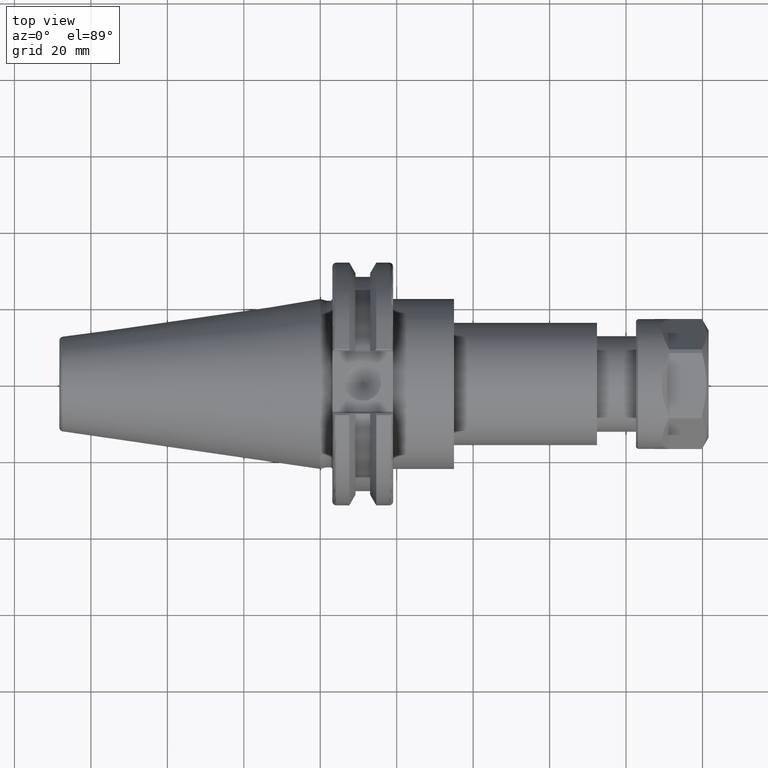
[diagram: clean part render]
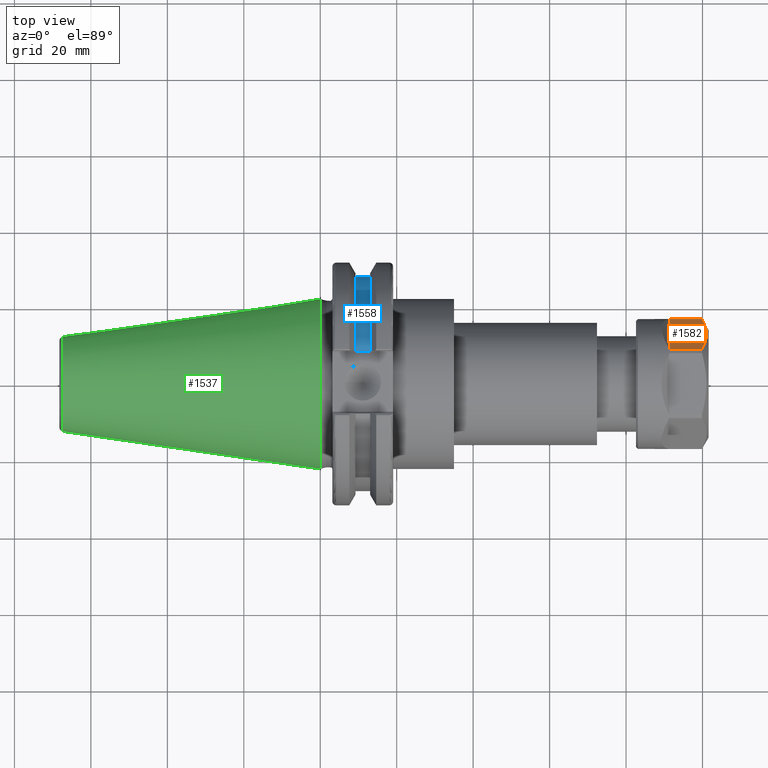
[diagram: same view with three faces highlighted in distinct colors, each labeled with its STEP entity id]
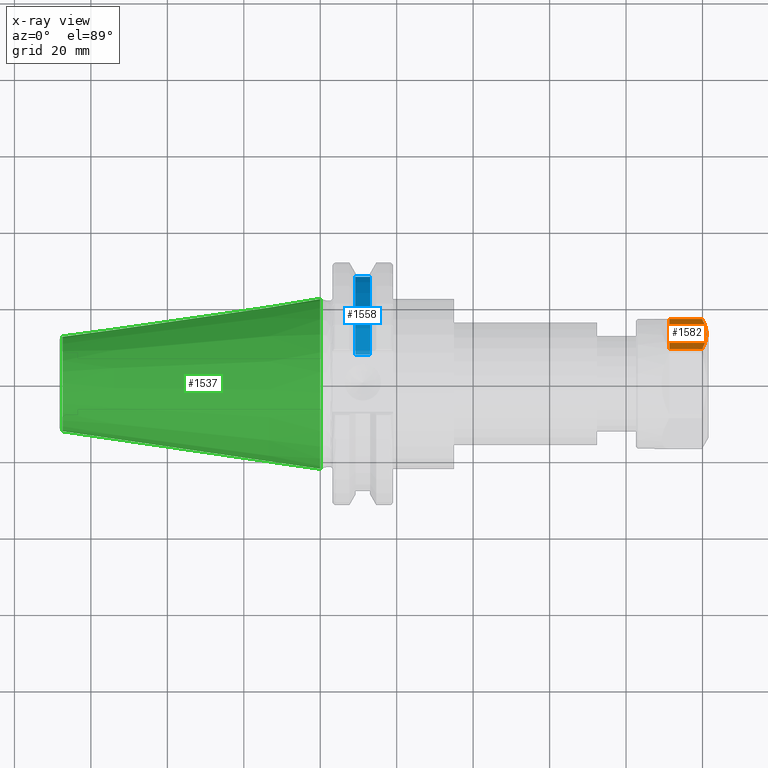
[diagram: x-ray of the same camera — body ghosted, the three highlighted faces saturated]
A machine part, top view with three faces highlighted in distinct colors.
The next image is the same camera in x-ray (body ghosted, the three faces saturated) — at least one of them is partly hidden behind the body in this view.
Their STEP definitions:

[orange] entity #1582 — the highlighted planar face has unit normal (0, -0.8598, -0.5106).
#89=(
BOUNDED_CURVE()
B_SPLINE_CURVE(2,(#2846,#2847,#2848),.UNSPECIFIED.,.F.,.F.)
B_SPLINE_CURVE_WITH_KNOTS((3,3),(1.89977904823299,4.47851568551581),
 .UNSPECIFIED.)
CURVE()
GEOMETRIC_REPRESENTATION_ITEM()
RATIONAL_B_SPLINE_CURVE((1.51788044142248,1.72026450027882,1.51788044142245))
REPRESENTATION_ITEM('')
);
#171=PLANE('',#1817);
#269=FACE_OUTER_BOUND('',#371,.T.);
#371=EDGE_LOOP('',(#1430,#1431,#1432,#1433));
#469=LINE('',#2788,#569);
#470=LINE('',#2792,#570);
#485=LINE('',#2865,#585);
#569=VECTOR('',#2178,8.567949192431);
#570=VECTOR('',#2181,8.567949192431);
#585=VECTOR('',#2238,15.9999999999995);
#781=VERTEX_POINT('',#2785);
#782=VERTEX_POINT('',#2787);
#783=VERTEX_POINT('',#2789);
#784=VERTEX_POINT('',#2791);
#982=EDGE_CURVE('',#782,#781,#469,.T.);
#984=EDGE_CURVE('',#783,#784,#470,.T.);
#1009=EDGE_CURVE('',#781,#784,#89,.T.);
#1015=EDGE_CURVE('',#782,#783,#485,.T.);
#1430=ORIENTED_EDGE('',*,*,#1015,.F.);
#1431=ORIENTED_EDGE('',*,*,#982,.T.);
#1432=ORIENTED_EDGE('',*,*,#1009,.T.);
#1433=ORIENTED_EDGE('',*,*,#984,.F.);
#1582=ADVANCED_FACE('',(#269),#171,.F.);
#1817=AXIS2_PLACEMENT_3D('',#2864,#2236,#2237);
#2178=DIRECTION('',(1.,0.,0.));
#2181=DIRECTION('',(1.,0.,0.));
#2236=DIRECTION('center_axis',(0.,0.866025403784429,-0.500000000000017));
#2237=DIRECTION('ref_axis',(0.,0.500000000000017,0.866025403784429));
#2238=DIRECTION('',(0.,0.500000000000017,0.866025403784429));
#2785=CARTESIAN_POINT('',(7.767949192431,-16.99038105677,0.5717967697245));
#2787=CARTESIAN_POINT('',(-0.8,-16.99038105677,0.5717967697245));
#2788=CARTESIAN_POINT('',(-0.8,-16.99038105677,0.5717967697245));
#2789=CARTESIAN_POINT('',(-0.8,-8.990381056767,14.42820323028));
#2791=CARTESIAN_POINT('',(7.767949192431,-8.990381056767,14.42820323028));
#2792=CARTESIAN_POINT('',(-0.8,-8.990381056767,14.42820323028));
#2846=CARTESIAN_POINT('Ctrl Pts',(7.76794919242789,-16.9903810567699,0.571796769725043));
#2847=CARTESIAN_POINT('Ctrl Pts',(9.94150314702463,-12.9903810567687,7.50000000000218));
#2848=CARTESIAN_POINT('Ctrl Pts',(7.76794919242752,-8.99038105676748,14.4282032302796));
#2864=CARTESIAN_POINT('Origin',(9.5,-17.99038105677,-1.160254037844));
#2865=CARTESIAN_POINT('',(-0.8,-16.99038105677,0.5717967697245));

[blue] entity #1558 — the highlighted cylindrical surface (partial cylindrical patch) has radius 28.15 mm, axis along (1, 0, 0).
#245=FACE_OUTER_BOUND('',#344,.T.);
#344=EDGE_LOOP('',(#1307,#1308,#1309,#1310));
#419=LINE('',#2470,#519);
#453=LINE('',#2684,#553);
#519=VECTOR('',#1968,10.);
#553=VECTOR('',#2062,10.);
#636=CIRCLE('',#1767,28.15);
#638=CIRCLE('',#1771,28.15);
#713=VERTEX_POINT('',#2467);
#714=VERTEX_POINT('',#2469);
#758=VERTEX_POINT('',#2681);
#759=VERTEX_POINT('',#2683);
#874=EDGE_CURVE('',#714,#713,#419,.T.);
#939=EDGE_CURVE('',#759,#758,#453,.T.);
#961=EDGE_CURVE('',#713,#759,#636,.T.);
#963=EDGE_CURVE('',#714,#758,#638,.T.);
#1307=ORIENTED_EDGE('',*,*,#874,.T.);
#1308=ORIENTED_EDGE('',*,*,#961,.T.);
#1309=ORIENTED_EDGE('',*,*,#939,.T.);
#1310=ORIENTED_EDGE('',*,*,#963,.F.);
#1496=CYLINDRICAL_SURFACE('',#1770,28.15);
#1558=ADVANCED_FACE('',(#245),#1496,.T.);
#1767=AXIS2_PLACEMENT_3D('',#2738,#2113,#2114);
#1770=AXIS2_PLACEMENT_3D('',#2741,#2119,#2120);
#1771=AXIS2_PLACEMENT_3D('',#2742,#2121,#2122);
#1968=DIRECTION('',(-1.,0.,0.));
#2062=DIRECTION('',(1.,0.,0.));
#2113=DIRECTION('center_axis',(1.,0.,0.));
#2114=DIRECTION('ref_axis',(0.,0.,-1.));
#2119=DIRECTION('center_axis',(1.,0.,0.));
#2120=DIRECTION('ref_axis',(0.,1.,0.));
#2121=DIRECTION('center_axis',(1.,0.,0.));
#2122=DIRECTION('ref_axis',(0.,0.,-1.));
#2467=CARTESIAN_POINT('',(9.212,8.19,-26.932255754021));
#2469=CARTESIAN_POINT('',(13.042,8.19,-26.932255754021));
#2470=CARTESIAN_POINT('',(11.127,8.19,-26.932255754021));
#2681=CARTESIAN_POINT('',(13.042,8.19,26.932255754021));
#2683=CARTESIAN_POINT('',(9.212,8.19,26.932255754021));
#2684=CARTESIAN_POINT('',(11.127,8.19,26.932255754021));
#2738=CARTESIAN_POINT('Origin',(9.212,0.,0.));
#2741=CARTESIAN_POINT('Origin',(11.127,0.,0.));
#2742=CARTESIAN_POINT('Origin',(13.042,0.,0.));

[green] entity #1537 — the highlighted conical surface has half-angle 8.297 deg.
#182=CONICAL_SURFACE('',#1738,17.2484375,0.144812498238939);
#224=FACE_OUTER_BOUND('',#323,.T.);
#323=EDGE_LOOP('',(#1209,#1210,#1211,#1212,#1213));
#445=LINE('',#2663,#545);
#545=VECTOR('',#2042,17.2484375);
#622=CIRCLE('',#1732,12.3966635780937);
#623=CIRCLE('',#1733,12.3966635780937);
#627=CIRCLE('',#1739,22.225);
#751=VERTEX_POINT('',#2650);
#752=VERTEX_POINT('',#2651);
#755=VERTEX_POINT('',#2661);
#924=EDGE_CURVE('',#751,#752,#622,.T.);
#925=EDGE_CURVE('',#752,#751,#623,.T.);
#929=EDGE_CURVE('',#755,#755,#627,.T.);
#930=EDGE_CURVE('',#755,#752,#445,.T.);
#1209=ORIENTED_EDGE('',*,*,#929,.F.);
#1210=ORIENTED_EDGE('',*,*,#930,.T.);
#1211=ORIENTED_EDGE('',*,*,#924,.F.);
#1212=ORIENTED_EDGE('',*,*,#925,.F.);
#1213=ORIENTED_EDGE('',*,*,#930,.F.);
#1537=ADVANCED_FACE('',(#224),#182,.T.);
#1732=AXIS2_PLACEMENT_3D('',#2652,#2026,#2027);
#1733=AXIS2_PLACEMENT_3D('',#2653,#2028,#2029);
#1738=AXIS2_PLACEMENT_3D('',#2660,#2038,#2039);
#1739=AXIS2_PLACEMENT_3D('',#2662,#2040,#2041);
#2026=DIRECTION('center_axis',(-1.,0.,0.));
#2027=DIRECTION('ref_axis',(0.,-1.,3.06161699786838E-17));
#2028=DIRECTION('center_axis',(-1.,0.,0.));
#2029=DIRECTION('ref_axis',(0.,-1.,3.06161699786838E-17));
#2038=DIRECTION('center_axis',(1.,0.,0.));
#2039=DIRECTION('ref_axis',(0.,1.,0.));
#2040=DIRECTION('center_axis',(1.,0.,0.));
#2041=DIRECTION('ref_axis',(0.,0.,-1.));
#2042=DIRECTION('',(-0.989532981063282,0.144306893071729,1.76724974695192E-17));
#2650=CARTESIAN_POINT('',(-67.3943068930717,-1.5181534371019E-15,12.3966635780937));
#2651=CARTESIAN_POINT('',(-67.3943068930718,-12.3966635780937,-1.5181534371019E-15));
#2652=CARTESIAN_POINT('Origin',(-67.3943068930717,0.,-1.89769179637738E-15));
#2653=CARTESIAN_POINT('Origin',(-67.3943068930717,0.,-1.89769179637738E-15));
#2660=CARTESIAN_POINT('Origin',(-34.125,0.,0.));
#2661=CARTESIAN_POINT('',(0.,-22.225,-2.72177751110499E-15));
#2662=CARTESIAN_POINT('Origin',(0.,0.,0.));
#2663=CARTESIAN_POINT('',(-34.125,-17.2484375,-2.11232437746682E-15));